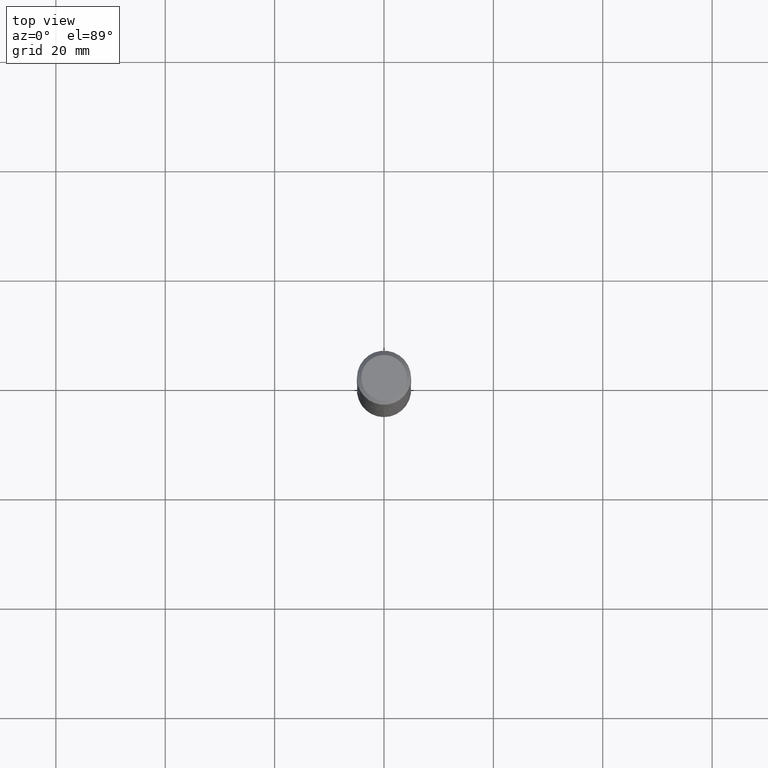
[diagram: clean part render]
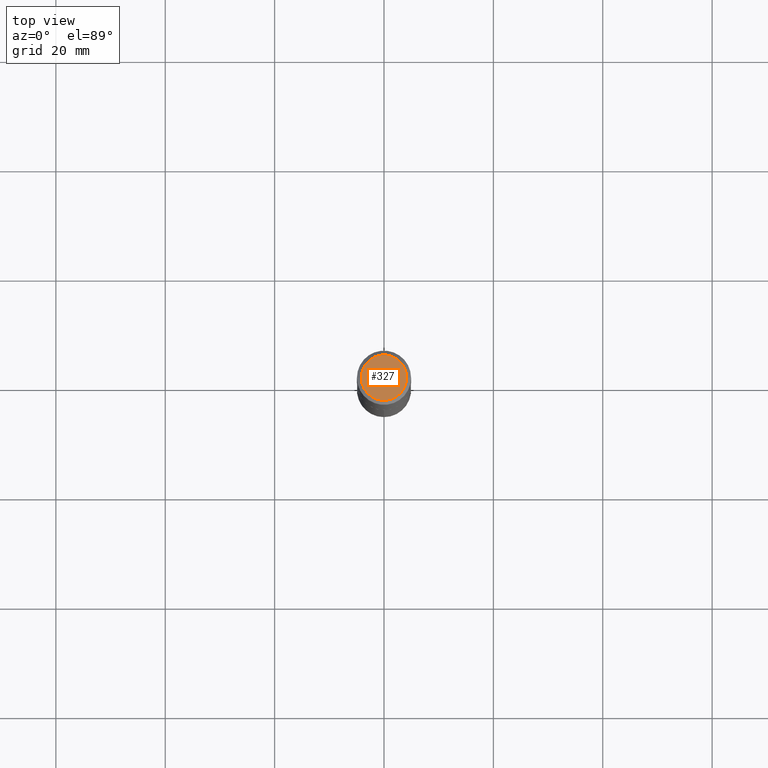
[diagram: same view with one face highlighted and labeled with its STEP entity id]
A machine part, top view. The second image highlights one B-rep face of the part: STEP entity #327.
In plain terms, the highlighted planar face has unit normal (0, -0, -1).
Its self-contained STEP definition (entity closure, byte-faithful):
#4 = EDGE_CURVE ( 'NONE', #336, #355, #218, .T. ) ;
#25 = AXIS2_PLACEMENT_3D ( 'NONE', #176, #112, #201 ) ;
#41 = CARTESIAN_POINT ( 'NONE',  ( -5.989671091818699506E-48, 8.551662891794013634E-34, 2.449293598294725547E-19 ) ) ;
#44 = CARTESIAN_POINT ( 'NONE',  ( -0.1636499999999999622, 1.197316238122780624E-15, 2.449293598212901450E-19 ) ) ;
#77 = EDGE_CURVE ( 'NONE', #355, #336, #116, .T. ) ;
#80 = PLANE ( 'NONE',  #25 ) ;
#87 = ORIENTED_EDGE ( 'NONE', *, *, #77, .T. ) ;
#90 = AXIS2_PLACEMENT_3D ( 'NONE', #248, #101, #276 ) ;
#101 = DIRECTION ( 'NONE',  ( -2.445468806185136597E-29, 3.491481338843145583E-15, 1.000000000000000000 ) ) ;
#109 = FACE_OUTER_BOUND ( 'NONE', #120, .T. ) ;
#112 = DIRECTION ( 'NONE',  ( 2.438088387897960049E-29, -3.491481338843145188E-15, -1.000000000000000000 ) ) ;
#116 = CIRCLE ( 'NONE', #90, 0.1636499999999999622 ) ;
#120 = EDGE_LOOP ( 'NONE', ( #87, #298 ) ) ;
#173 = CARTESIAN_POINT ( 'NONE',  ( 0.1636499999999999622, -1.284470174469915757E-15, 2.449293598379592612E-19 ) ) ;
#176 = CARTESIAN_POINT ( 'NONE',  ( -2.994835545909349753E-48, 4.275831445897006817E-34, 1.224646799147362773E-19 ) ) ;
#201 = DIRECTION ( 'NONE',  ( -1.000000000000000000, 6.982962677686265922E-15, -4.876176775795935793E-29 ) ) ;
#218 = CIRCLE ( 'NONE', #314, 0.1636499999999999622 ) ;
#229 = DIRECTION ( 'NONE',  ( -2.445468806185136597E-29, 3.491481338843145583E-15, 1.000000000000000000 ) ) ;
#248 = CARTESIAN_POINT ( 'NONE',  ( -5.989671091818699506E-48, 8.551662891794013634E-34, 2.449293598294725547E-19 ) ) ;
#276 = DIRECTION ( 'NONE',  ( 1.000000000000000000, -6.982962677686266711E-15, 4.876171972610107408E-29 ) ) ;
#298 = ORIENTED_EDGE ( 'NONE', *, *, #4, .T. ) ;
#299 = DIRECTION ( 'NONE',  ( 1.000000000000000000, -6.982962677686266711E-15, 4.876171972610107408E-29 ) ) ;
#314 = AXIS2_PLACEMENT_3D ( 'NONE', #41, #229, #299 ) ;
#327 = ADVANCED_FACE ( 'NONE', ( #109 ), #80, .F. ) ;
#336 = VERTEX_POINT ( 'NONE', #173 ) ;
#355 = VERTEX_POINT ( 'NONE', #44 ) ;